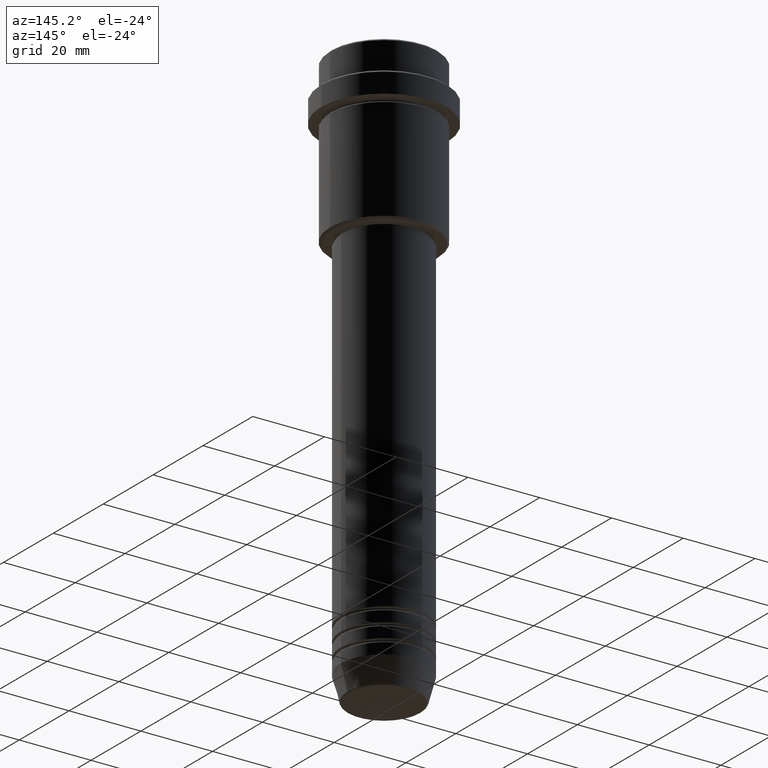
[diagram: clean part render]
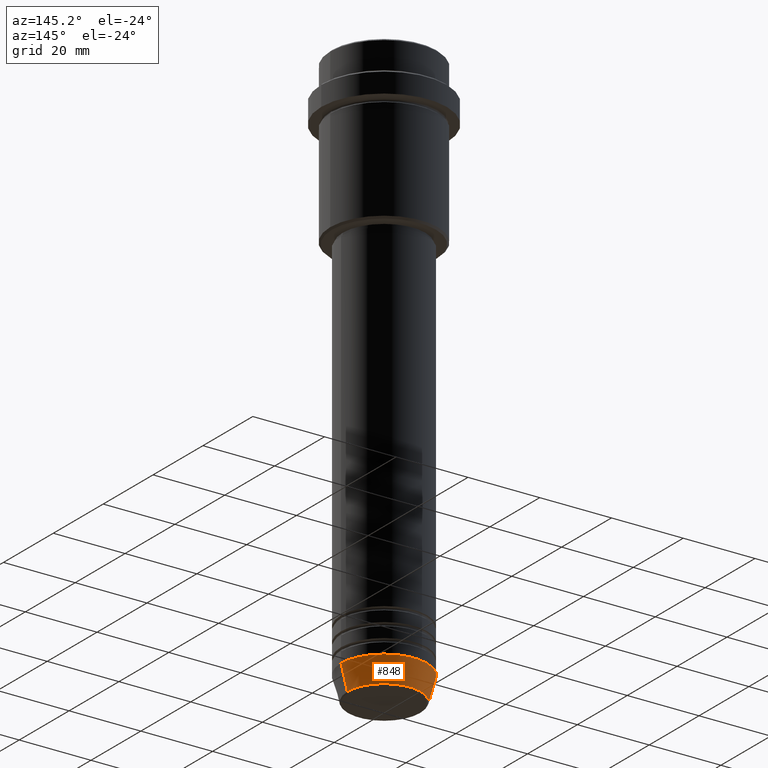
[diagram: same view with one face highlighted and labeled with its STEP entity id]
A machine part, auxiliary view. The second image highlights one B-rep face of the part: STEP entity #848.
In plain terms, the highlighted conical surface has half-angle 15 deg.
Its self-contained STEP definition (entity closure, byte-faithful):
#2 = DIRECTION ( 'NONE',  ( 1.000000000000000000, 0.000000000000000000, 0.000000000000000000 ) ) ;
#18 = ORIENTED_EDGE ( 'NONE', *, *, #319, .F. ) ;
#54 = CIRCLE ( 'NONE', #219, 10.22365507213719660 ) ;
#103 = CARTESIAN_POINT ( 'NONE',  ( 0.000000000000000000, 0.000000000000000000, -153.0000000000000000 ) ) ;
#111 = CARTESIAN_POINT ( 'NONE',  ( -12.00000000000000000, 1.469576158976823947E-15, -153.0000000000000000 ) ) ;
#219 = AXIS2_PLACEMENT_3D ( 'NONE', #752, #1401, #896 ) ;
#319 = EDGE_CURVE ( 'NONE', #559, #602, #932, .T. ) ;
#439 = DIRECTION ( 'NONE',  ( -0.000000000000000000, -0.000000000000000000, 1.000000000000000000 ) ) ;
#499 = CARTESIAN_POINT ( 'NONE',  ( 12.00000000000000000, 0.000000000000000000, -153.0000000000000000 ) ) ;
#523 = DIRECTION ( 'NONE',  ( -0.000000000000000000, -0.000000000000000000, 1.000000000000000000 ) ) ;
#535 = LINE ( 'NONE', #1056, #1297 ) ;
#559 = VERTEX_POINT ( 'NONE', #499 ) ;
#593 = VECTOR ( 'NONE', #1373, 1000.000000000000000 ) ;
#602 = VERTEX_POINT ( 'NONE', #111 ) ;
#622 = ORIENTED_EDGE ( 'NONE', *, *, #1168, .T. ) ;
#644 = CARTESIAN_POINT ( 'NONE',  ( -10.22365507213719837, 1.360806402472383336E-15, -159.6294095225512422 ) ) ;
#732 = CARTESIAN_POINT ( 'NONE',  ( -12.00000000000000000, 1.469576158976823947E-15, -153.0000000000000000 ) ) ;
#752 = CARTESIAN_POINT ( 'NONE',  ( 0.000000000000000000, 0.000000000000000000, -159.6294095225512422 ) ) ;
#819 = EDGE_CURVE ( 'NONE', #880, #1270, #54, .T. ) ;
#848 = ADVANCED_FACE ( 'NONE', ( #1309 ), #1228, .T. ) ;
#866 = LINE ( 'NONE', #732, #593 ) ;
#877 = DIRECTION ( 'NONE',  ( 0.2588190451025213501, 0.000000000000000000, 0.9659258262890680902 ) ) ;
#880 = VERTEX_POINT ( 'NONE', #901 ) ;
#896 = DIRECTION ( 'NONE',  ( 1.000000000000000000, 0.000000000000000000, 0.000000000000000000 ) ) ;
#901 = CARTESIAN_POINT ( 'NONE',  ( 10.22365507213719660, 0.000000000000000000, -159.6294095225512422 ) ) ;
#932 = CIRCLE ( 'NONE', #1068, 12.00000000000000000 ) ;
#952 = CARTESIAN_POINT ( 'NONE',  ( 0.000000000000000000, 0.000000000000000000, -153.0000000000000000 ) ) ;
#1056 = CARTESIAN_POINT ( 'NONE',  ( 12.00000000000000000, 0.000000000000000000, -153.0000000000000000 ) ) ;
#1068 = AXIS2_PLACEMENT_3D ( 'NONE', #952, #523, #1258 ) ;
#1168 = EDGE_CURVE ( 'NONE', #1270, #602, #866, .T. ) ;
#1193 = ORIENTED_EDGE ( 'NONE', *, *, #819, .T. ) ;
#1228 = CONICAL_SURFACE ( 'NONE', #1404, 12.00000000000000000, 0.2617993877991500740 ) ;
#1258 = DIRECTION ( 'NONE',  ( 1.000000000000000000, 0.000000000000000000, 0.000000000000000000 ) ) ;
#1268 = EDGE_LOOP ( 'NONE', ( #1193, #622, #18, #1365 ) ) ;
#1270 = VERTEX_POINT ( 'NONE', #644 ) ;
#1292 = EDGE_CURVE ( 'NONE', #880, #559, #535, .T. ) ;
#1297 = VECTOR ( 'NONE', #877, 1000.000000000000000 ) ;
#1309 = FACE_OUTER_BOUND ( 'NONE', #1268, .T. ) ;
#1365 = ORIENTED_EDGE ( 'NONE', *, *, #1292, .F. ) ;
#1373 = DIRECTION ( 'NONE',  ( -0.2588190451025213501, 3.169619151431772337E-17, 0.9659258262890680902 ) ) ;
#1401 = DIRECTION ( 'NONE',  ( -0.000000000000000000, -0.000000000000000000, 1.000000000000000000 ) ) ;
#1404 = AXIS2_PLACEMENT_3D ( 'NONE', #103, #439, #2 ) ;